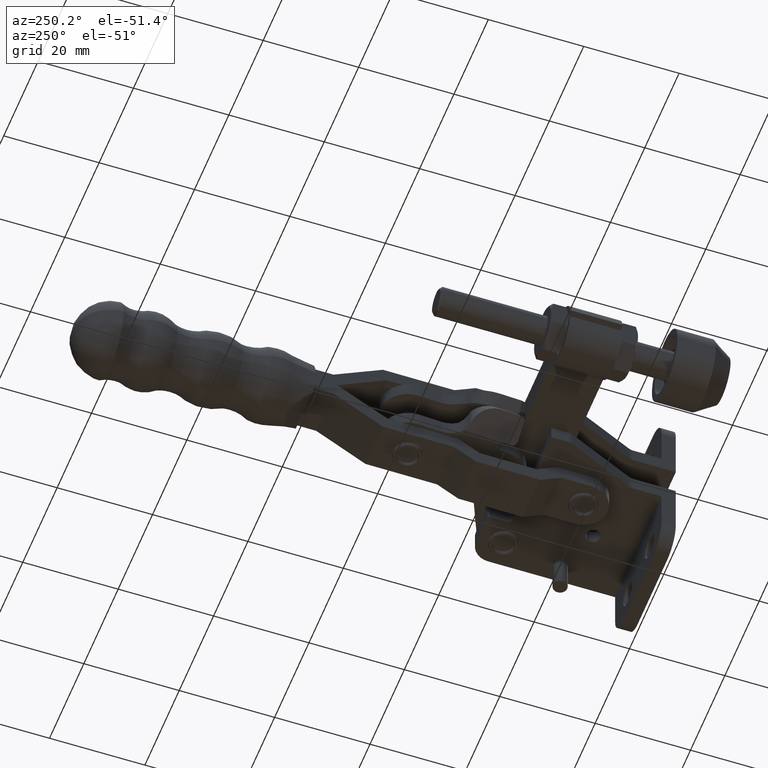
[diagram: clean part render]
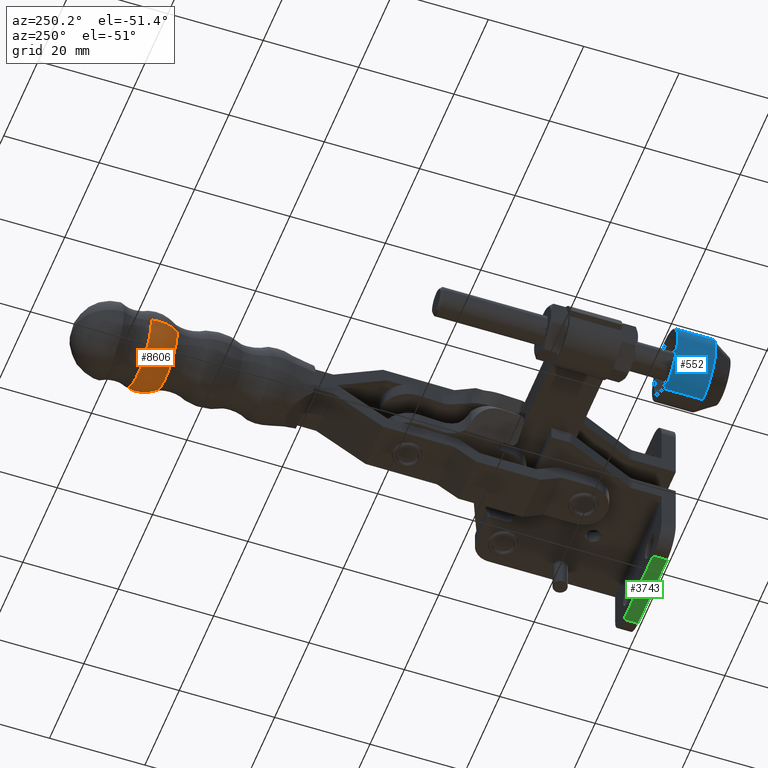
[diagram: same view with three faces highlighted in distinct colors, each labeled with its STEP entity id]
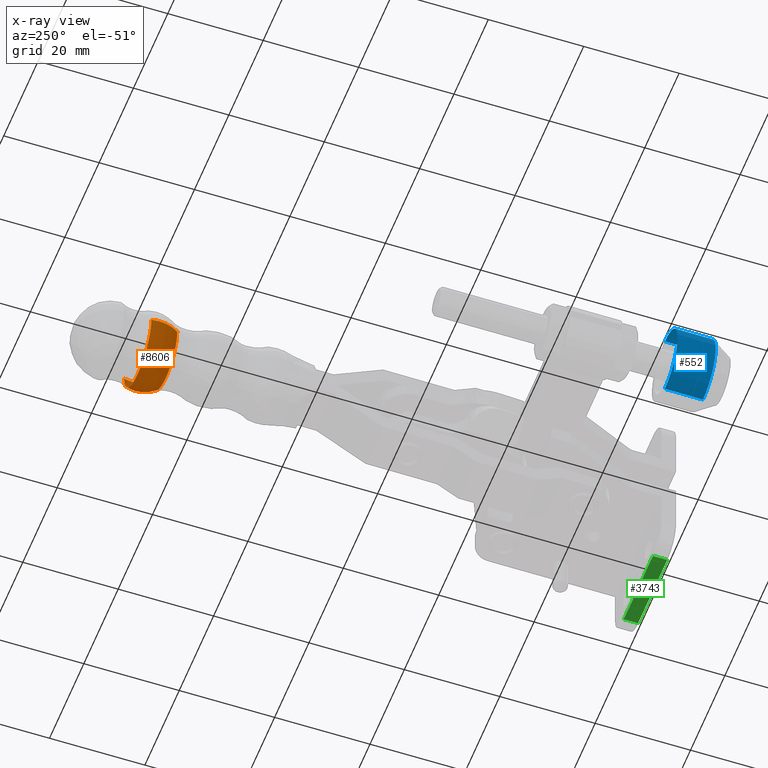
[diagram: x-ray of the same camera — body ghosted, the three highlighted faces saturated]
A machine part, auxiliary view with three faces highlighted in distinct colors.
The next image is the same camera in x-ray (body ghosted, the three faces saturated) — at least one of them is partly hidden behind the body in this view.
Their STEP definitions:

[orange] entity #8606 — the highlighted toroidal blend (fillet) surface has major radius 0.8845 mm and minor (blend) radius 7.2108 mm.
#531 = CARTESIAN_POINT ( 'NONE',  ( -22.44758746731868400, 109.4707642583788400, -2.999999999999633600 ) ) ;
#758 = CARTESIAN_POINT ( 'NONE',  ( -22.45614821433403900, 111.1897058572060200, -2.999999999999626500 ) ) ;
#920 = DIRECTION ( 'NONE',  ( 0.9999875988200824800, 0.004980181326596481000, 0.0000000000000000000 ) ) ;
#1350 = EDGE_CURVE ( 'NONE', #3271, #4439, #8768, .T. ) ;
#1853 = CARTESIAN_POINT ( 'NONE',  ( -29.24697419651843000, 105.3420307522040500, -2.999999999999648700 ) ) ;
#1936 = CARTESIAN_POINT ( 'NONE',  ( -23.33207719322761500, 109.4663592845354300, -2.999999999999633600 ) ) ;
#1968 = AXIS2_PLACEMENT_3D ( 'NONE', #758, #9706, #920 ) ;
#2744 = DIRECTION ( 'NONE',  ( 0.0000000000000000000, -1.000000000000000000, -3.849150437146654400E-015 ) ) ;
#3261 = EDGE_CURVE ( 'NONE', #3271, #3796, #7525, .T. ) ;
#3271 = VERTEX_POINT ( 'NONE', #9185 ) ;
#3796 = VERTEX_POINT ( 'NONE', #1853 ) ;
#3805 = AXIS2_PLACEMENT_3D ( 'NONE', #9520, #4684, #10341 ) ;
#3894 = CARTESIAN_POINT ( 'NONE',  ( -21.56309774140975600, 109.4751692322222400, -2.999999999999633600 ) ) ;
#3995 = ORIENTED_EDGE ( 'NONE', *, *, #1350, .T. ) ;
#4183 = FACE_OUTER_BOUND ( 'NONE', #7584, .T. ) ;
#4439 = VERTEX_POINT ( 'NONE', #10044 ) ;
#4522 = VERTEX_POINT ( 'NONE', #9441 ) ;
#4544 = DIRECTION ( 'NONE',  ( 0.004980181326596481800, -0.9999875988200825900, -3.867242677514357300E-015 ) ) ;
#4552 = EDGE_CURVE ( 'NONE', #3796, #4522, #7367, .T. ) ;
#4684 = DIRECTION ( 'NONE',  ( 0.004980181326596481800, -0.9999875988200825900, -3.867242677514357300E-015 ) ) ;
#4700 = DIRECTION ( 'NONE',  ( 0.0000000000000000000, 1.000000000000000000, 3.849150437146654400E-015 ) ) ;
#5775 = AXIS2_PLACEMENT_3D ( 'NONE', #1936, #7510, #2744 ) ;
#6028 = AXIS2_PLACEMENT_3D ( 'NONE', #3894, #9531, #4700 ) ;
#6570 = AXIS2_PLACEMENT_3D ( 'NONE', #531, #4544, #10193 ) ;
#6922 = EDGE_CURVE ( 'NONE', #4439, #4522, #8519, .T. ) ;
#6943 = ORIENTED_EDGE ( 'NONE', *, *, #4552, .F. ) ;
#7139 = ORIENTED_EDGE ( 'NONE', *, *, #6922, .T. ) ;
#7367 = CIRCLE ( 'NONE', #3805, 6.819864250291535000 ) ;
#7510 = DIRECTION ( 'NONE',  ( 1.417256024401658000E-016, -3.866584808529460500E-015, 1.000000000000000000 ) ) ;
#7525 = CIRCLE ( 'NONE', #5775, 7.210831602675396500 ) ;
#7584 = EDGE_LOOP ( 'NONE', ( #8098, #3995, #7139, #6943 ) ) ;
#8098 = ORIENTED_EDGE ( 'NONE', *, *, #3261, .F. ) ;
#8519 = CIRCLE ( 'NONE', #6028, 7.210831602675396500 ) ;
#8606 = ADVANCED_FACE ( 'NONE', ( #4183 ), #9862, .T. ) ;
#8768 = CIRCLE ( 'NONE', #1968, 7.887447138621380900 ) ;
#9185 = CARTESIAN_POINT ( 'NONE',  ( -30.34349753930436200, 111.1504249402517500, -2.999999999999626100 ) ) ;
#9441 = CARTESIAN_POINT ( 'NONE',  ( -15.60741484466252200, 105.4099590733825000, -2.999999999999649600 ) ) ;
#9520 = CARTESIAN_POINT ( 'NONE',  ( -22.42719452059047600, 105.3759949127932700, -2.999999999999649200 ) ) ;
#9531 = DIRECTION ( 'NONE',  ( -1.926244123195963700E-017, 3.867194704841539500E-015, -1.000000000000000000 ) ) ;
#9706 = DIRECTION ( 'NONE',  ( 0.004980181326596481800, -0.9999875988200825900, -3.867242677514357300E-015 ) ) ;
#9862 = TOROIDAL_SURFACE ( 'NONE', #6570, 0.8845006947611833100, 7.210831602675394700 ) ;
#10044 = CARTESIAN_POINT ( 'NONE',  ( -14.56879888936371600, 111.2289867741603000, -2.999999999999627000 ) ) ;
#10193 = DIRECTION ( 'NONE',  ( 0.9999875988200825900, 0.004980181326596481800, 1.874284871156774400E-030 ) ) ;
#10341 = DIRECTION ( 'NONE',  ( 0.9999875988200824800, 0.004980181326595762800, 0.0000000000000000000 ) ) ;

[blue] entity #552 — the highlighted cylindrical surface (partial cylindrical patch) has radius 7.5 mm, axis along (0, 1, 0).
#453 = DIRECTION ( 'NONE',  ( 0.0000000000000000000, 0.0000000000000000000, 1.000000000000000000 ) ) ;
#552 = ADVANCED_FACE ( 'NONE', ( #3484 ), #9654, .T. ) ;
#975 = DIRECTION ( 'NONE',  ( -0.0000000000000000000, 1.000000000000000000, -0.0000000000000000000 ) ) ;
#1512 = DIRECTION ( 'NONE',  ( -0.0000000000000000000, 1.000000000000000000, -0.0000000000000000000 ) ) ;
#2051 = DIRECTION ( 'NONE',  ( -0.0000000000000000000, 1.000000000000000000, -0.0000000000000000000 ) ) ;
#2363 = CARTESIAN_POINT ( 'NONE',  ( -53.88955070568556500, 11.99999999999927200, -10.49999999999996600 ) ) ;
#2581 = AXIS2_PLACEMENT_3D ( 'NONE', #9761, #1512, #3219 ) ;
#2692 = ORIENTED_EDGE ( 'NONE', *, *, #8951, .T. ) ;
#2775 = ORIENTED_EDGE ( 'NONE', *, *, #5319, .F. ) ;
#2815 = VERTEX_POINT ( 'NONE', #8103 ) ;
#2828 = AXIS2_PLACEMENT_3D ( 'NONE', #6813, #2051, #7636 ) ;
#3133 = VECTOR ( 'NONE', #8110, 1000.000000000000000 ) ;
#3219 = DIRECTION ( 'NONE',  ( 0.0000000000000000000, 0.0000000000000000000, 1.000000000000000000 ) ) ;
#3484 = FACE_OUTER_BOUND ( 'NONE', #8879, .T. ) ;
#3598 = VERTEX_POINT ( 'NONE', #2363 ) ;
#3720 = CARTESIAN_POINT ( 'NONE',  ( -53.88955070568556500, 11.99999999999927200, 4.499999999999664300 ) ) ;
#4594 = ORIENTED_EDGE ( 'NONE', *, *, #8551, .T. ) ;
#5240 = DIRECTION ( 'NONE',  ( -0.0000000000000000000, 1.000000000000000000, -0.0000000000000000000 ) ) ;
#5319 = EDGE_CURVE ( 'NONE', #2815, #3598, #9559, .T. ) ;
#5569 = VERTEX_POINT ( 'NONE', #6085 ) ;
#5638 = AXIS2_PLACEMENT_3D ( 'NONE', #10088, #5240, #453 ) ;
#6085 = CARTESIAN_POINT ( 'NONE',  ( -53.88955070568556500, 4.000000000000125200, 4.499999999999689100 ) ) ;
#6354 = VERTEX_POINT ( 'NONE', #3720 ) ;
#6441 = CARTESIAN_POINT ( 'NONE',  ( -53.88955070568556500, 13.34506395760505100, -10.49999999999997900 ) ) ;
#6813 = CARTESIAN_POINT ( 'NONE',  ( -53.88955070568556500, 4.000000000000125200, -3.000000000000151000 ) ) ;
#7279 = EDGE_CURVE ( 'NONE', #3598, #6354, #9636, .T. ) ;
#7284 = LINE ( 'NONE', #9789, #9226 ) ;
#7636 = DIRECTION ( 'NONE',  ( 0.0000000000000000000, 0.0000000000000000000, 1.000000000000000000 ) ) ;
#8103 = CARTESIAN_POINT ( 'NONE',  ( -53.88955070568556500, 4.000000000000125200, -10.49999999999999100 ) ) ;
#8110 = DIRECTION ( 'NONE',  ( -0.0000000000000000000, 1.000000000000000000, -0.0000000000000000000 ) ) ;
#8551 = EDGE_CURVE ( 'NONE', #2815, #5569, #8740, .T. ) ;
#8740 = CIRCLE ( 'NONE', #2828, 7.499999999999840100 ) ;
#8844 = ORIENTED_EDGE ( 'NONE', *, *, #7279, .F. ) ;
#8879 = EDGE_LOOP ( 'NONE', ( #2775, #4594, #2692, #8844 ) ) ;
#8951 = EDGE_CURVE ( 'NONE', #5569, #6354, #7284, .T. ) ;
#9226 = VECTOR ( 'NONE', #975, 1000.000000000000000 ) ;
#9559 = LINE ( 'NONE', #6441, #3133 ) ;
#9636 = CIRCLE ( 'NONE', #5638, 7.499999999999815300 ) ;
#9654 = CYLINDRICAL_SURFACE ( 'NONE', #2581, 7.499999999999827700 ) ;
#9761 = CARTESIAN_POINT ( 'NONE',  ( -53.88955070568556500, 13.34506395760505100, -3.000000000000151000 ) ) ;
#9789 = CARTESIAN_POINT ( 'NONE',  ( -53.88955070568556500, 13.34506395760505100, 4.499999999999676700 ) ) ;
#10088 = CARTESIAN_POINT ( 'NONE',  ( -53.88955070568556500, 11.99999999999927200, -3.000000000000151000 ) ) ;

[green] entity #3743 — the highlighted planar face has unit normal (0, -0, -1).
#153 = VECTOR ( 'NONE', #1210, 1000.000000000000000 ) ;
#165 = CARTESIAN_POINT ( 'NONE',  ( -4.989550705685401200, 3.000000000000003100, -21.89999999999999500 ) ) ;
#263 = VECTOR ( 'NONE', #5748, 1000.000000000000000 ) ;
#1176 = CARTESIAN_POINT ( 'NONE',  ( -4.989550705685401200, 3.000000000000003100, -21.89999999999999500 ) ) ;
#1210 = DIRECTION ( 'NONE',  ( -1.000000000000000000, 7.147703211200712700E-016, -3.531380689049215600E-021 ) ) ;
#1492 = ORIENTED_EDGE ( 'NONE', *, *, #5331, .T. ) ;
#1820 = CARTESIAN_POINT ( 'NONE',  ( -4.989550705685401200, 3.000000000000003100, -21.89999999999999500 ) ) ;
#2132 = VERTEX_POINT ( 'NONE', #4906 ) ;
#2267 = VERTEX_POINT ( 'NONE', #10101 ) ;
#2310 = CARTESIAN_POINT ( 'NONE',  ( -21.98955070568537500, 1.536092642103911000E-014, -21.89999999999999500 ) ) ;
#2589 = ORIENTED_EDGE ( 'NONE', *, *, #4926, .F. ) ;
#2788 = VECTOR ( 'NONE', #6021, 1000.000000000000000 ) ;
#3437 = PLANE ( 'NONE',  #9710 ) ;
#3505 = DIRECTION ( 'NONE',  ( -1.000000000000000000, 7.147703211200712700E-016, -3.531380689049215600E-021 ) ) ;
#3743 = ADVANCED_FACE ( 'NONE', ( #6034 ), #3437, .T. ) ;
#4231 = DIRECTION ( 'NONE',  ( 3.531380689049159100E-021, -7.886466548071891300E-020, -1.000000000000000000 ) ) ;
#4474 = CARTESIAN_POINT ( 'NONE',  ( -21.98955070568537100, 3.000000000000015100, -21.89999999999999500 ) ) ;
#4895 = ORIENTED_EDGE ( 'NONE', *, *, #6767, .T. ) ;
#4906 = CARTESIAN_POINT ( 'NONE',  ( -4.989550705685402900, 3.209830961997918600E-015, -21.89999999999999500 ) ) ;
#4926 = EDGE_CURVE ( 'NONE', #2267, #5429, #6509, .T. ) ;
#5331 = EDGE_CURVE ( 'NONE', #2267, #2132, #6375, .T. ) ;
#5343 = LINE ( 'NONE', #8320, #9632 ) ;
#5429 = VERTEX_POINT ( 'NONE', #7469 ) ;
#5748 = DIRECTION ( 'NONE',  ( -7.147703211200712700E-016, -1.000000000000000000, 7.886466548071891300E-020 ) ) ;
#5944 = EDGE_LOOP ( 'NONE', ( #4895, #7641, #2589, #1492 ) ) ;
#6021 = DIRECTION ( 'NONE',  ( -7.147703211200712700E-016, -1.000000000000000000, 7.886466548071891300E-020 ) ) ;
#6034 = FACE_OUTER_BOUND ( 'NONE', #5944, .T. ) ;
#6375 = LINE ( 'NONE', #165, #263 ) ;
#6509 = LINE ( 'NONE', #1176, #153 ) ;
#6767 = EDGE_CURVE ( 'NONE', #2132, #10322, #5343, .T. ) ;
#7016 = LINE ( 'NONE', #4474, #2788 ) ;
#7469 = CARTESIAN_POINT ( 'NONE',  ( -21.98955070568537100, 3.000000000000015100, -21.89999999999999500 ) ) ;
#7641 = ORIENTED_EDGE ( 'NONE', *, *, #9728, .F. ) ;
#8320 = CARTESIAN_POINT ( 'NONE',  ( -4.989550705685402900, 3.209830961997918600E-015, -21.89999999999999500 ) ) ;
#9632 = VECTOR ( 'NONE', #3505, 1000.000000000000000 ) ;
#9710 = AXIS2_PLACEMENT_3D ( 'NONE', #1820, #4231, #9884 ) ;
#9728 = EDGE_CURVE ( 'NONE', #5429, #10322, #7016, .T. ) ;
#9884 = DIRECTION ( 'NONE',  ( 1.000000000000000000, 1.392505783634663000E-040, 3.531380689049159100E-021 ) ) ;
#10101 = CARTESIAN_POINT ( 'NONE',  ( -4.989550705685401200, 3.000000000000003100, -21.89999999999999500 ) ) ;
#10322 = VERTEX_POINT ( 'NONE', #2310 ) ;